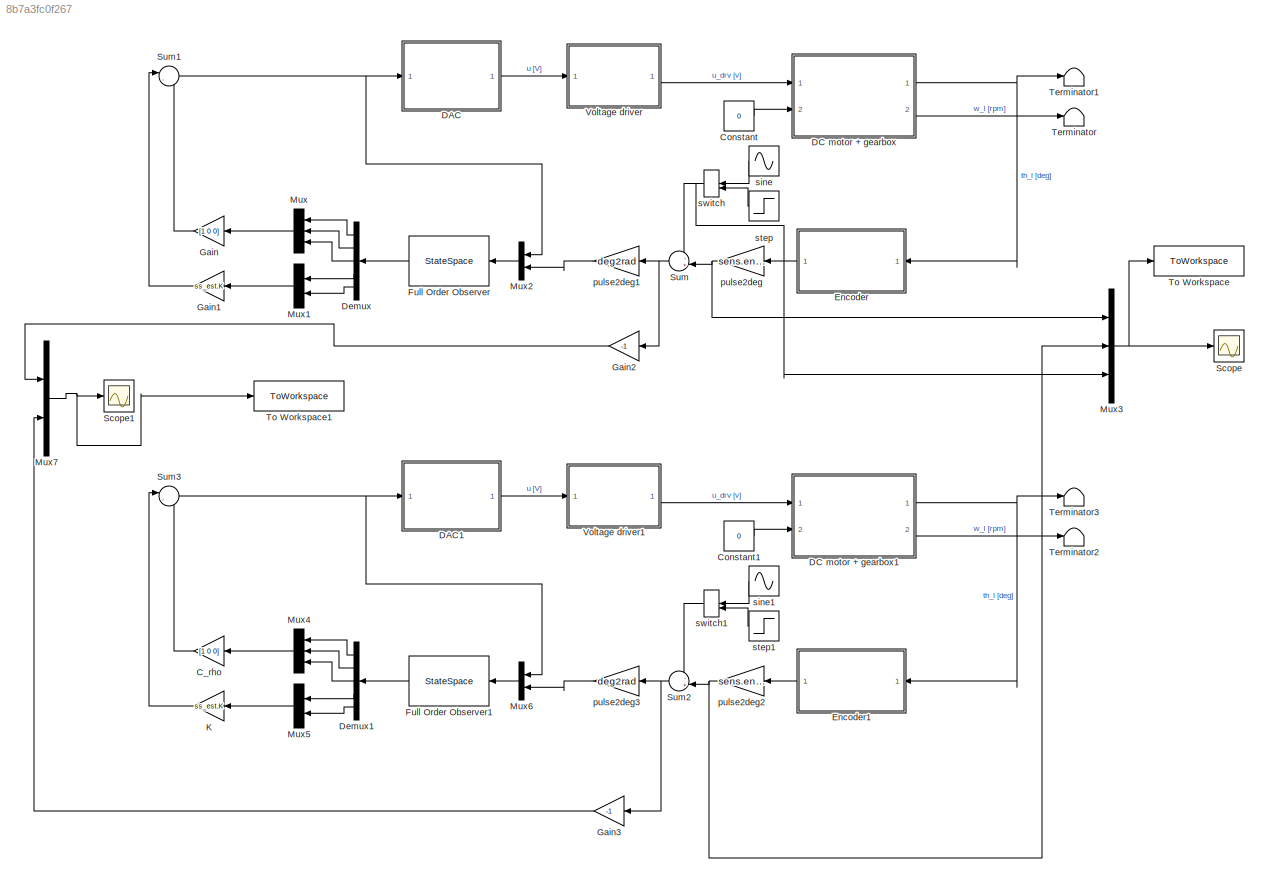
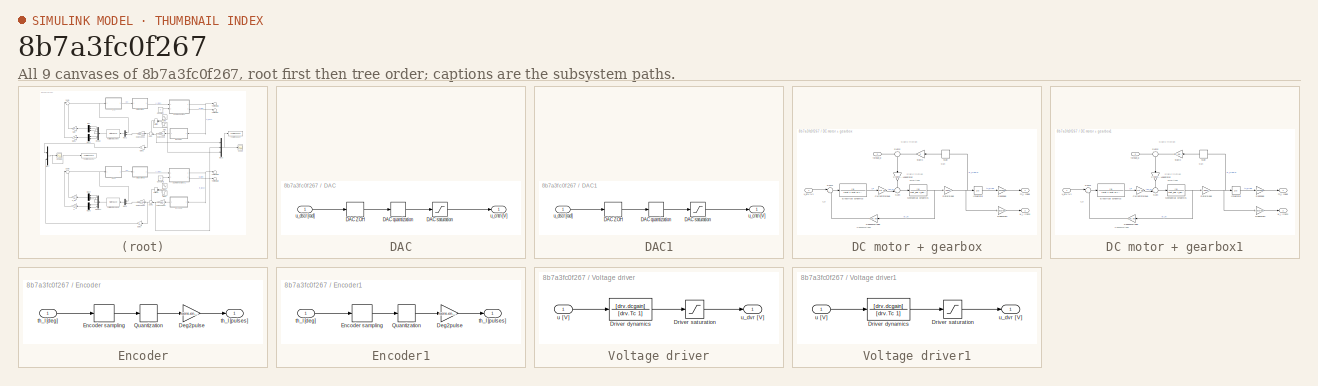
[diagram: thumbnail index - all 9 canvases of the model, root first then tree order]
MODEL slx_8b7a3fc0f267
KIND model
CONFIG AbsTol = auto
CONFIG EnableMultiTasking = off
CONFIG FixedStep = auto
CONFIG MaxStep = auto
CONFIG MinStep = auto
CONFIG RelTol = 1e-3
CONFIG SampleTimeConstraint = Unconstrained
CONFIG SolverName = ode45
CONFIG StartTime = 0.0
CONFIG StopTime = 1
BLOCK [Gain] C_rho
  Gain = [1 0 0]
  Multiplication = Matrix(K*u)
  NameLocation = top
BLOCK [Constant] Constant
  Value = 0
BLOCK [Constant] Constant1
  Value = 0
BLOCK [SubSystem] DAC
  Ports = [1, 1]
  RequestExecContextInheritance = off
BLOCK [ZeroOrderHold] DAC/DAC ZOH
  SampleTime = sens.enc.T_s
BLOCK [Quantizer] DAC/DAC quantization
  QuantizationInterval = daq.dac.q
BLOCK [Saturate] DAC/DAC saturation
  LowerLimit = -10
  UpperLimit = 10
BLOCK [Outport] DAC/u_cntn [V]
BLOCK [Inport] DAC/u_dscr [rad]
BLOCK [SubSystem] DAC1
  Ports = [1, 1]
  RequestExecContextInheritance = off
BLOCK [ZeroOrderHold] DAC1/DAC ZOH
  SampleTime = sens.enc.T_s
BLOCK [Quantizer] DAC1/DAC quantization
  QuantizationInterval = daq.dac.q
BLOCK [Saturate] DAC1/DAC saturation
  LowerLimit = -10
  UpperLimit = 10
BLOCK [Outport] DAC1/u_cntn [V]
BLOCK [Inport] DAC1/u_dscr [rad]
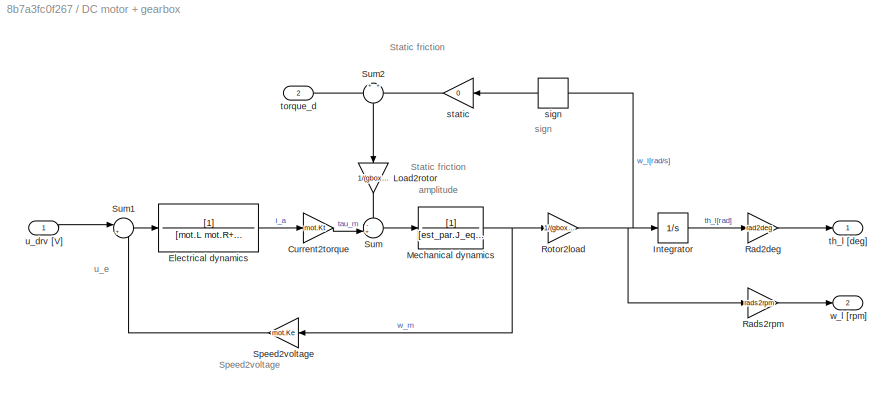
BLOCK [SubSystem] DC motor + gearbox
  Ports = [2, 2]
  RequestExecContextInheritance = off
BLOCK [Gain] DC motor + gearbox/Current2torque
  Gain = mot.Kt
BLOCK [TransferFcn] DC motor + gearbox/Electrical dynamics
  Denominator = [mot.L mot.R+sens.curr.Rs]
BLOCK [Integrator] DC motor + gearbox/Integrator
  Ports = [1, 1]
BLOCK [Gain] DC motor + gearbox/Load2rotor
  Gain = 1/(gbox.N)
  NameLocation = left
BLOCK [TransferFcn] DC motor + gearbox/Mechanical dynamics
  Denominator = [est_par.J_eq est_par.B_eq]
BLOCK [Gain] DC motor + gearbox/Rad2deg
  Gain = rad2deg
BLOCK [Gain] DC motor + gearbox/Rads2rpm
  Gain = rads2rpm
BLOCK [Gain] DC motor + gearbox/Rotor2load
  Gain = 1/(gbox.N)
BLOCK [Gain] DC motor + gearbox/Speed2voltage
  Gain = mot.Ke
  NameLocation = top
BLOCK [Sum] DC motor + gearbox/Sum
  Inputs = -+|
  Ports = [2, 1]
BLOCK [Sum] DC motor + gearbox/Sum1
  Inputs = |+-
  Ports = [2, 1]
BLOCK [Sum] DC motor + gearbox/Sum2
  Inputs = +|+
  NameLocation = left
  Ports = [2, 1]
BLOCK [Signum] DC motor + gearbox/sign
  NameLocation = top
  ZeroCross = off
BLOCK [Gain] DC motor + gearbox/static
  Gain = 0
  NameLocation = top
BLOCK [Outport] DC motor + gearbox/th_l [deg]
BLOCK [Inport] DC motor + gearbox/torque_d
  Port = 2
BLOCK [Inport] DC motor + gearbox/u_drv [V]
BLOCK [Outport] DC motor + gearbox/w_l [rpm]
  Port = 2
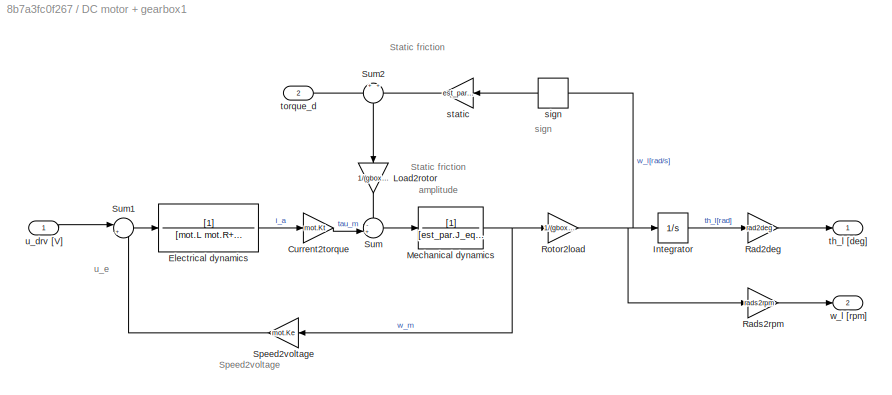
BLOCK [SubSystem] DC motor + gearbox1
  Ports = [2, 2]
  RequestExecContextInheritance = off
BLOCK [Gain] DC motor + gearbox1/Current2torque
  Gain = mot.Kt
BLOCK [TransferFcn] DC motor + gearbox1/Electrical dynamics
  Denominator = [mot.L mot.R+sens.curr.Rs]
BLOCK [Integrator] DC motor + gearbox1/Integrator
  Ports = [1, 1]
BLOCK [Gain] DC motor + gearbox1/Load2rotor
  Gain = 1/(gbox.N)
  NameLocation = left
BLOCK [TransferFcn] DC motor + gearbox1/Mechanical dynamics
  Denominator = [est_par.J_eq est_par.B_eq]
BLOCK [Gain] DC motor + gearbox1/Rad2deg
  Gain = rad2deg
BLOCK [Gain] DC motor + gearbox1/Rads2rpm
  Gain = rads2rpm
BLOCK [Gain] DC motor + gearbox1/Rotor2load
  Gain = 1/(gbox.N)
BLOCK [Gain] DC motor + gearbox1/Speed2voltage
  Gain = mot.Ke
  NameLocation = top
BLOCK [Sum] DC motor + gearbox1/Sum
  Inputs = -+|
  Ports = [2, 1]
BLOCK [Sum] DC motor + gearbox1/Sum1
  Inputs = |+-
  Ports = [2, 1]
BLOCK [Sum] DC motor + gearbox1/Sum2
  Inputs = +|+
  NameLocation = left
  Ports = [2, 1]
BLOCK [Signum] DC motor + gearbox1/sign
  NameLocation = top
  ZeroCross = off
BLOCK [Gain] DC motor + gearbox1/static
  Gain = est_par.tau_sf
  NameLocation = top
BLOCK [Outport] DC motor + gearbox1/th_l [deg]
BLOCK [Inport] DC motor + gearbox1/torque_d
  Port = 2
BLOCK [Inport] DC motor + gearbox1/u_drv [V]
BLOCK [Outport] DC motor + gearbox1/w_l [rpm]
  Port = 2
BLOCK [Demux] Demux
  NameLocation = top
  Outputs = 5
  Ports = [1, 5]
BLOCK [Demux] Demux1
  NameLocation = top
  Outputs = 5
  Ports = [1, 5]
BLOCK [SubSystem] Encoder
  NameLocation = top
  Ports = [1, 1]
  RequestExecContextInheritance = off
BLOCK [Gain] Encoder/Deg2pulse
  Gain = sens.enc.deg2pulse
BLOCK [ZeroOrderHold] Encoder/Encoder sampling
  SampleTime = 0.001
BLOCK [Quantizer] Encoder/Quantization
  QuantizationInterval = sens.enc.q
BLOCK [Inport] Encoder/th_l [deg]
BLOCK [Outport] Encoder/th_l [pulses]
BLOCK [SubSystem] Encoder1
  NameLocation = top
  Ports = [1, 1]
  RequestExecContextInheritance = off
BLOCK [Gain] Encoder1/Deg2pulse
  Gain = sens.enc.deg2pulse
BLOCK [ZeroOrderHold] Encoder1/Encoder sampling
  SampleTime = 0.001
BLOCK [Quantizer] Encoder1/Quantization
  QuantizationInterval = sens.enc.q
BLOCK [Inport] Encoder1/th_l [deg]
BLOCK [Outport] Encoder1/th_l [pulses]
BLOCK [StateSpace] Full Order Observer
  A = ss_est.Ae_3 - ss_est.Le_3*ss_est.Ce
  B = [ss_est.Be ss_est.Le_3]
  C = eye(5)
  D = [0 0; 0 0;0 0;0 0;0 0]
  InitialCondition = 0
  NameLocation = top
  Ports = [1, 1]
BLOCK [StateSpace] Full Order Observer1
  A = ss_est.Ae_3 - ss_est.Le_3*ss_est.Ce
  B = [ss_est.Be ss_est.Le_3]
  C = eye(5)
  D = [0 0; 0 0;0 0;0 0;0 0]
  InitialCondition = 0
  NameLocation = top
  Ports = [1, 1]
BLOCK [Gain] Gain
  Gain = [1 0 0]
  Multiplication = Matrix(K*u)
  NameLocation = top
BLOCK [Gain] Gain1
  Gain = ss_est.K
  Multiplication = Matrix(K*u)
  NameLocation = top
BLOCK [Gain] Gain2
  Gain = -1
  NameLocation = top
BLOCK [Gain] Gain3
  Gain = -1
  NameLocation = top
BLOCK [Gain] K
  Gain = ss_est.K
  Multiplication = Matrix(K*u)
  NameLocation = top
BLOCK [Mux] Mux
  DisplayOption = bar
  Inputs = 3
  NameLocation = top
  Ports = [3, 1]
BLOCK [Mux] Mux1
  DisplayOption = bar
  Inputs = 2
  NameLocation = top
  Ports = [2, 1]
BLOCK [Mux] Mux2
  DisplayOption = bar
  Inputs = 2
  NameLocation = top
  Ports = [2, 1]
BLOCK [Mux] Mux3
  DisplayOption = bar
  Inputs = 3
  Ports = [3, 1]
BLOCK [Mux] Mux4
  DisplayOption = bar
  Inputs = 3
  NameLocation = top
  Ports = [3, 1]
BLOCK [Mux] Mux5
  DisplayOption = bar
  Inputs = 2
  NameLocation = top
  Ports = [2, 1]
BLOCK [Mux] Mux6
  DisplayOption = bar
  Inputs = 2
  NameLocation = top
  Ports = [2, 1]
BLOCK [Mux] Mux7
  DisplayOption = bar
  Inputs = 2
  Ports = [2, 1]
BLOCK [Scope] Scope
  Floating = off
  NumInputPorts = 1
  Ports = [1]
  ScopeSpecificationString = Simulink.scopes.TimeScopeBlockCfg('CurrentConfiguration', extmgr.ConfigurationSet(extmgr.Configuration('Core','General UI',true),extmgr.Configuration('Core','Source UI',true),extmgr.Configuration('Sources','WiredSimulink',true),extmgr.Configuration('Visuals','Time Domain',true,'SerializedDisplays',{struct('MinYLimReal','-573.69507','MaxYLimReal','577.1228','YLabelReal','','MinYLimMag',' 0.00000','...<+1412ch>
BLOCK [Scope] Scope1
  Floating = off
  NumInputPorts = 1
  Ports = [1]
  ScopeSpecificationString = Simulink.scopes.TimeScopeBlockCfg('CurrentConfiguration', extmgr.ConfigurationSet(extmgr.Configuration('Core','General UI',true),extmgr.Configuration('Core','Source UI',true),extmgr.Configuration('Sources','WiredSimulink',true,'DataLoggingVariableName','ScopeData1'),extmgr.Configuration('Visuals','Time Domain',true,'SerializedDisplays',{struct('MinYLimReal','-537.1228','MaxYLimReal','613.69507','Y...<+1435ch>
BLOCK [Sum] Sum
  Inputs = -+|
  NameLocation = top
  Ports = [2, 1]
BLOCK [Sum] Sum1
  Inputs = |--
  Ports = [2, 1]
BLOCK [Sum] Sum2
  Inputs = -+|
  NameLocation = top
  Ports = [2, 1]
BLOCK [Sum] Sum3
  Inputs = |--
  Ports = [2, 1]
BLOCK [Terminator] Terminator
BLOCK [Terminator] Terminator1
BLOCK [Terminator] Terminator2
BLOCK [Terminator] Terminator3
BLOCK [ToWorkspace] To Workspace
  FixptAsFi = on
  MaxDataPoints = inf
  Ports = [1]
  SampleTime = -1
  SaveFormat = Structure With Time
  VariableName = simres
BLOCK [ToWorkspace] To Workspace1
  FixptAsFi = on
  MaxDataPoints = inf
  Ports = [1]
  SampleTime = -1
  SaveFormat = Structure With Time
  VariableName = err
BLOCK [SubSystem] Voltage driver
  Ports = [1, 1]
  RequestExecContextInheritance = off
BLOCK [TransferFcn] Voltage driver/Driver dynamics
  Denominator = [drv.Tc 1]
  Numerator = [drv.dcgain]
BLOCK [Saturate] Voltage driver/Driver saturation
  LowerLimit = -12
  UpperLimit = 12
BLOCK [Inport] Voltage driver/u [V]
BLOCK [Outport] Voltage driver/u_dvr [V]
BLOCK [SubSystem] Voltage driver1
  Ports = [1, 1]
  RequestExecContextInheritance = off
BLOCK [TransferFcn] Voltage driver1/Driver dynamics
  Denominator = [drv.Tc 1]
  Numerator = [drv.dcgain]
BLOCK [Saturate] Voltage driver1/Driver saturation
  LowerLimit = -12
  UpperLimit = 12
BLOCK [Inport] Voltage driver1/u [V]
BLOCK [Outport] Voltage driver1/u_dvr [V]
BLOCK [Gain] pulse2deg
  Gain = sens.enc.pulse2deg
  NameLocation = top
BLOCK [Gain] pulse2deg1
  Gain = deg2rad
  NameLocation = top
BLOCK [Gain] pulse2deg2
  Gain = sens.enc.pulse2deg
  NameLocation = top
BLOCK [Gain] pulse2deg3
  Gain = deg2rad
  NameLocation = top
BLOCK [Sin] sine
  Amplitude = 30
  Frequency = err_space.w3
  NameLocation = top
  Ports = [0, 1]
  SampleTime = 0
BLOCK [Sin] sine1
  Amplitude = 40
  Frequency = 2*pi/0.1
  NameLocation = top
  Ports = [0, 1]
  SampleTime = 0
BLOCK [Step] step
  After = 40
  NameLocation = top
  SampleTime = 0
  Time = 0
BLOCK [Step] step1
  After = 40
  NameLocation = top
  SampleTime = 0
  Time = 0
BLOCK [ManualSwitch] switch
  CurrentSetting = 0
  NameLocation = top
BLOCK [ManualSwitch] switch1
  CurrentSetting = 0
  NameLocation = top
ANNOTATION DC motor + gearbox: Static friction
ANNOTATION DC motor + gearbox: Speed2voltage
ANNOTATION DC motor + gearbox: Static friction amplitude
ANNOTATION DC motor + gearbox: sign
ANNOTATION DC motor + gearbox: u_e
ANNOTATION DC motor + gearbox1: Static friction
ANNOTATION DC motor + gearbox1: Speed2voltage
ANNOTATION DC motor + gearbox1: Static friction amplitude
ANNOTATION DC motor + gearbox1: sign
ANNOTATION DC motor + gearbox1: u_e
LINE C_rho:1 -> Sum3:2
LINE Constant1:1 -> DC motor + gearbox1:2
LINE Constant:1 -> DC motor + gearbox:2
LINE DAC/DAC ZOH:1 -> DAC/DAC quantization:1
LINE DAC/DAC quantization:1 -> DAC/DAC saturation:1
LINE DAC/DAC saturation:1 -> DAC/u_cntn [V]:1
LINE DAC/u_dscr [rad]:1 -> DAC/DAC ZOH:1
LINE DAC1/DAC ZOH:1 -> DAC1/DAC quantization:1
LINE DAC1/DAC quantization:1 -> DAC1/DAC saturation:1
LINE DAC1/DAC saturation:1 -> DAC1/u_cntn [V]:1
LINE DAC1/u_dscr [rad]:1 -> DAC1/DAC ZOH:1
LINE DAC1:1 -> Voltage driver1:1
LINE DAC:1 -> Voltage driver:1
LINE DC motor + gearbox/Current2torque:1 -> DC motor + gearbox/Sum:2
LINE DC motor + gearbox/Electrical dynamics:1 -> DC motor + gearbox/Current2torque:1
LINE DC motor + gearbox/Integrator:1 -> DC motor + gearbox/Rad2deg:1
LINE DC motor + gearbox/Load2rotor:1 -> DC motor + gearbox/Sum:1
NET DC motor + gearbox/Mechanical dynamics:1 -> DC motor + gearbox/Rotor2load:1, DC motor + gearbox/Speed2voltage:1
LINE DC motor + gearbox/Rad2deg:1 -> DC motor + gearbox/th_l [deg]:1
LINE DC motor + gearbox/Rads2rpm:1 -> DC motor + gearbox/w_l [rpm]:1
NET DC motor + gearbox/Rotor2load:1 -> DC motor + gearbox/Integrator:1, DC motor + gearbox/Rads2rpm:1, DC motor + gearbox/sign:1
LINE DC motor + gearbox/Speed2voltage:1 -> DC motor + gearbox/Sum1:2
LINE DC motor + gearbox/Sum1:1 -> DC motor + gearbox/Electrical dynamics:1
LINE DC motor + gearbox/Sum2:1 -> DC motor + gearbox/Load2rotor:1
LINE DC motor + gearbox/Sum:1 -> DC motor + gearbox/Mechanical dynamics:1
LINE DC motor + gearbox/sign:1 -> DC motor + gearbox/static:1
LINE DC motor + gearbox/static:1 -> DC motor + gearbox/Sum2:2
LINE DC motor + gearbox/torque_d:1 -> DC motor + gearbox/Sum2:1
LINE DC motor + gearbox/u_drv [V]:1 -> DC motor + gearbox/Sum1:1
LINE DC motor + gearbox1/Current2torque:1 -> DC motor + gearbox1/Sum:2
LINE DC motor + gearbox1/Electrical dynamics:1 -> DC motor + gearbox1/Current2torque:1
LINE DC motor + gearbox1/Integrator:1 -> DC motor + gearbox1/Rad2deg:1
LINE DC motor + gearbox1/Load2rotor:1 -> DC motor + gearbox1/Sum:1
NET DC motor + gearbox1/Mechanical dynamics:1 -> DC motor + gearbox1/Rotor2load:1, DC motor + gearbox1/Speed2voltage:1
LINE DC motor + gearbox1/Rad2deg:1 -> DC motor + gearbox1/th_l [deg]:1
LINE DC motor + gearbox1/Rads2rpm:1 -> DC motor + gearbox1/w_l [rpm]:1
NET DC motor + gearbox1/Rotor2load:1 -> DC motor + gearbox1/Integrator:1, DC motor + gearbox1/Rads2rpm:1, DC motor + gearbox1/sign:1
LINE DC motor + gearbox1/Speed2voltage:1 -> DC motor + gearbox1/Sum1:2
LINE DC motor + gearbox1/Sum1:1 -> DC motor + gearbox1/Electrical dynamics:1
LINE DC motor + gearbox1/Sum2:1 -> DC motor + gearbox1/Load2rotor:1
LINE DC motor + gearbox1/Sum:1 -> DC motor + gearbox1/Mechanical dynamics:1
LINE DC motor + gearbox1/sign:1 -> DC motor + gearbox1/static:1
LINE DC motor + gearbox1/static:1 -> DC motor + gearbox1/Sum2:2
LINE DC motor + gearbox1/torque_d:1 -> DC motor + gearbox1/Sum2:1
LINE DC motor + gearbox1/u_drv [V]:1 -> DC motor + gearbox1/Sum1:1
NET DC motor + gearbox1:1 -> Encoder1:1, Terminator3:1
LINE DC motor + gearbox1:2 -> Terminator2:1
NET DC motor + gearbox:1 -> Encoder:1, Terminator1:1
LINE DC motor + gearbox:2 -> Terminator:1
LINE Demux1:1 -> Mux4:1
LINE Demux1:2 -> Mux4:2
LINE Demux1:3 -> Mux4:3
LINE Demux1:4 -> Mux5:1
LINE Demux1:5 -> Mux5:2
LINE Demux:1 -> Mux:1
LINE Demux:2 -> Mux:2
LINE Demux:3 -> Mux:3
LINE Demux:4 -> Mux1:1
LINE Demux:5 -> Mux1:2
LINE Encoder/Deg2pulse:1 -> Encoder/th_l [pulses]:1
LINE Encoder/Encoder sampling:1 -> Encoder/Quantization:1
LINE Encoder/Quantization:1 -> Encoder/Deg2pulse:1
LINE Encoder/th_l [deg]:1 -> Encoder/Encoder sampling:1
LINE Encoder1/Deg2pulse:1 -> Encoder1/th_l [pulses]:1
LINE Encoder1/Encoder sampling:1 -> Encoder1/Quantization:1
LINE Encoder1/Quantization:1 -> Encoder1/Deg2pulse:1
LINE Encoder1/th_l [deg]:1 -> Encoder1/Encoder sampling:1
LINE Encoder1:1 -> pulse2deg2:1
LINE Encoder:1 -> pulse2deg:1
LINE Full Order Observer1:1 -> Demux1:1
LINE Full Order Observer:1 -> Demux:1
LINE Gain1:1 -> Sum1:1
LINE Gain2:1 -> Mux7:1
LINE Gain3:1 -> Mux7:2
LINE Gain:1 -> Sum1:2
LINE K:1 -> Sum3:1
LINE Mux1:1 -> Gain1:1
LINE Mux2:1 -> Full Order Observer:1
NET Mux3:1 -> Scope:1, To Workspace:1
LINE Mux4:1 -> C_rho:1
LINE Mux5:1 -> K:1
LINE Mux6:1 -> Full Order Observer1:1
NET Mux7:1 -> Scope1:1, To Workspace1:1
LINE Mux:1 -> Gain:1
NET Sum1:1 -> DAC:1, Mux2:1
NET Sum2:1 -> Gain3:1, pulse2deg3:1
NET Sum3:1 -> DAC1:1, Mux6:1
NET Sum:1 -> Gain2:1, pulse2deg1:1
LINE Voltage driver/Driver dynamics:1 -> Voltage driver/Driver saturation:1
LINE Voltage driver/Driver saturation:1 -> Voltage driver/u_dvr [V]:1
LINE Voltage driver/u [V]:1 -> Voltage driver/Driver dynamics:1
LINE Voltage driver1/Driver dynamics:1 -> Voltage driver1/Driver saturation:1
LINE Voltage driver1/Driver saturation:1 -> Voltage driver1/u_dvr [V]:1
LINE Voltage driver1/u [V]:1 -> Voltage driver1/Driver dynamics:1
LINE Voltage driver1:1 -> DC motor + gearbox1:1
LINE Voltage driver:1 -> DC motor + gearbox:1
LINE pulse2deg1:1 -> Mux2:2
NET pulse2deg2:1 -> Mux3:2, Sum2:2
LINE pulse2deg3:1 -> Mux6:2
NET pulse2deg:1 -> Mux3:1, Sum:2
LINE sine1:1 -> switch1:1
LINE sine:1 -> switch:1
LINE step1:1 -> switch1:2
LINE step:1 -> switch:2
LINE switch1:1 -> Sum2:1
NET switch:1 -> Mux3:3, Sum:1
note: NET lines group one-source signal fan-out (src -> all destinations, sorted); 1:1 wires keep LINE
